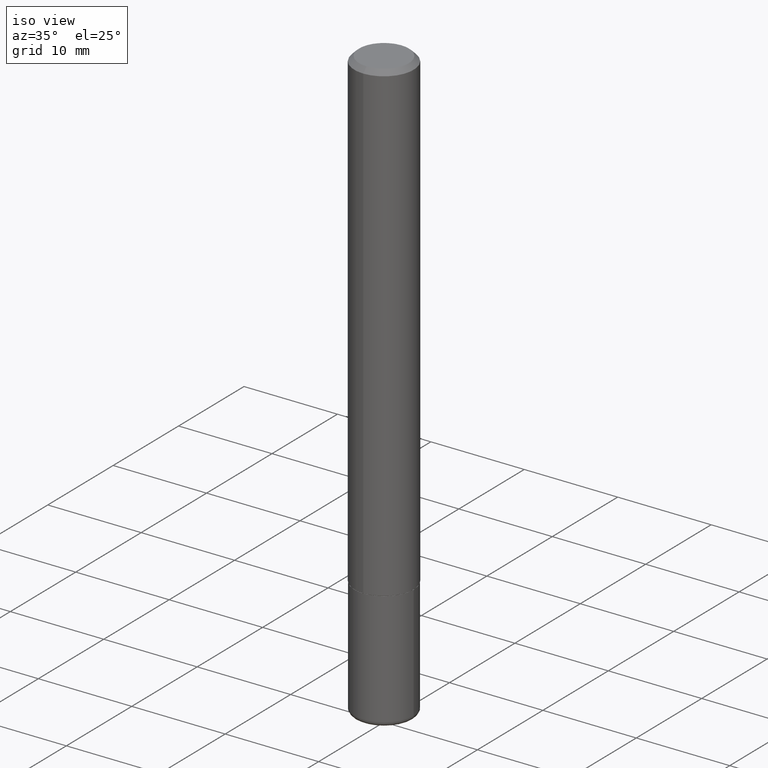
[diagram: clean part render]
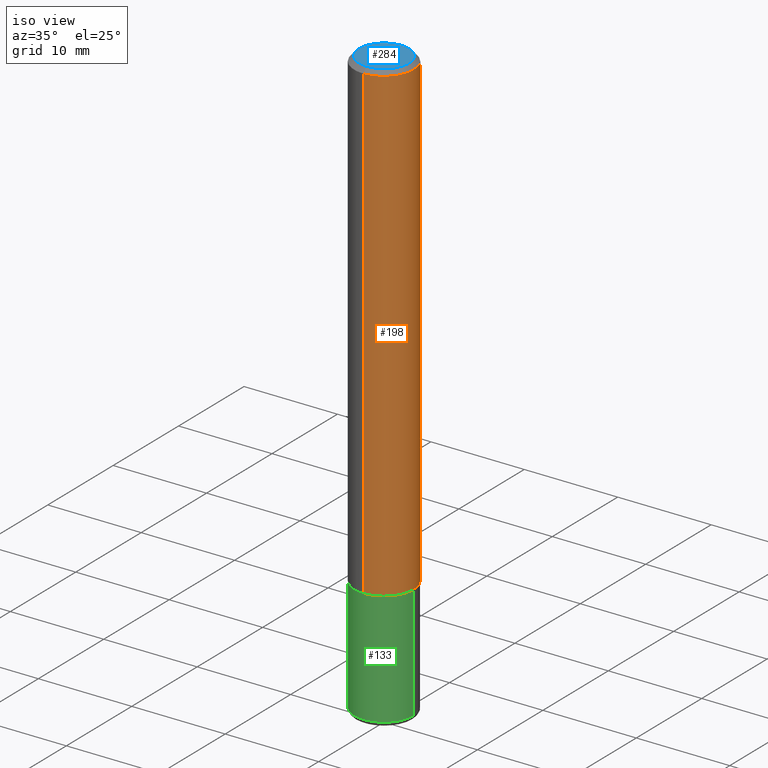
[diagram: same view with three faces highlighted in distinct colors, each labeled with its STEP entity id]
A machine part, iso view with three faces highlighted in distinct colors.
Their STEP definitions:

[orange] entity #198 — the highlighted cylindrical surface (edge-blend (fillet) strip) has radius 3.175 mm, axis along (-0, 0, 1).
#12 = CARTESIAN_POINT ( 'NONE',  ( -8.575622497214411495E-16, -0.1250000000000001110, -0.01999999999999963612 ) ) ;
#42 = VERTEX_POINT ( 'NONE', #385 ) ;
#45 = ORIENTED_EDGE ( 'NONE', *, *, #357, .T. ) ;
#51 = EDGE_CURVE ( 'NONE', #42, #316, #218, .T. ) ;
#52 = AXIS2_PLACEMENT_3D ( 'NONE', #231, #106, #110 ) ;
#58 = CARTESIAN_POINT ( 'NONE',  ( 8.881784197001510675E-16, 0.1249999999999932554, -1.999000000000000554 ) ) ;
#61 = VERTEX_POINT ( 'NONE', #95 ) ;
#67 = DIRECTION ( 'NONE',  ( -2.433760210306857467E-29, 3.508248714552732429E-15, 1.000000000000000000 ) ) ;
#95 = CARTESIAN_POINT ( 'NONE',  ( 8.728703347107839305E-16, 0.1249999999999999584, -0.02000000000000051736 ) ) ;
#106 = DIRECTION ( 'NONE',  ( -2.433760210306857467E-29, 3.508248714552732824E-15, 1.000000000000000000 ) ) ;
#110 = DIRECTION ( 'NONE',  ( -6.982962677686266711E-15, -1.000000000000000000, 3.508248714552733218E-15 ) ) ;
#122 = DIRECTION ( 'NONE',  ( -6.982962677686265922E-15, -1.000000000000000000, 3.517254291842738179E-15 ) ) ;
#147 = CYLINDRICAL_SURFACE ( 'NONE', #52, 0.1250000000000001388 ) ;
#161 = ORIENTED_EDGE ( 'NONE', *, *, #403, .F. ) ;
#183 = CARTESIAN_POINT ( 'NONE',  ( -8.728703347107843249E-16, -0.1250000000000001388, 4.385310893190921453E-16 ) ) ;
#185 = ORIENTED_EDGE ( 'NONE', *, *, #230, .T. ) ;
#198 = ADVANCED_FACE ( 'NONE', ( #302 ), #147, .T. ) ;
#213 = AXIS2_PLACEMENT_3D ( 'NONE', #280, #282, #122 ) ;
#218 = LINE ( 'NONE', #183, #406 ) ;
#230 = EDGE_CURVE ( 'NONE', #42, #370, #293, .T. ) ;
#231 = CARTESIAN_POINT ( 'NONE',  ( 0.000000000000000000, 0.000000000000000000, 0.000000000000000000 ) ) ;
#237 = EDGE_LOOP ( 'NONE', ( #185, #45, #161, #266 ) ) ;
#238 = CARTESIAN_POINT ( 'NONE',  ( 4.865086660403408100E-29, -7.012989180390911878E-15, -1.998999999999999888 ) ) ;
#252 = LINE ( 'NONE', #342, #354 ) ;
#266 = ORIENTED_EDGE ( 'NONE', *, *, #51, .F. ) ;
#280 = CARTESIAN_POINT ( 'NONE',  ( 4.867520420613734727E-31, -7.016497429105492666E-17, -0.02000000000000007674 ) ) ;
#282 = DIRECTION ( 'NONE',  ( -2.433760210306857467E-29, 3.508248714552732824E-15, 1.000000000000000000 ) ) ;
#293 = CIRCLE ( 'NONE', #367, 0.1250000000000002776 ) ;
#302 = FACE_OUTER_BOUND ( 'NONE', #237, .T. ) ;
#316 = VERTEX_POINT ( 'NONE', #12 ) ;
#342 = CARTESIAN_POINT ( 'NONE',  ( 8.881784197001262184E-16, 0.1250000000000001388, -4.385310893190921453E-16 ) ) ;
#354 = VECTOR ( 'NONE', #67, 39.37007874015748143 ) ;
#357 = EDGE_CURVE ( 'NONE', #370, #61, #252, .T. ) ;
#359 = CIRCLE ( 'NONE', #213, 0.1250000000000000278 ) ;
#363 = DIRECTION ( 'NONE',  ( -2.433760210306857467E-29, 3.508248714552732824E-15, 1.000000000000000000 ) ) ;
#367 = AXIS2_PLACEMENT_3D ( 'NONE', #238, #363, #405 ) ;
#370 = VERTEX_POINT ( 'NONE', #58 ) ;
#385 = CARTESIAN_POINT ( 'NONE',  ( -8.728703347107365002E-16, -0.1250000000000072997, -1.998999999999999444 ) ) ;
#403 = EDGE_CURVE ( 'NONE', #316, #61, #359, .T. ) ;
#405 = DIRECTION ( 'NONE',  ( -6.982962677686265922E-15, -1.000000000000000000, 4.370956789862811683E-15 ) ) ;
#406 = VECTOR ( 'NONE', #410, 39.37007874015748143 ) ;
#410 = DIRECTION ( 'NONE',  ( -2.433760210306857467E-29, 3.508248714552732429E-15, 1.000000000000000000 ) ) ;

[blue] entity #284 — the highlighted planar face has unit normal (0, -0, -1).
#22 = EDGE_LOOP ( 'NONE', ( #105, #93 ) ) ;
#24 = VERTEX_POINT ( 'NONE', #27 ) ;
#27 = CARTESIAN_POINT ( 'NONE',  ( 8.030407079339199420E-16, 0.1049999999999997047, -8.915222872200252248E-17 ) ) ;
#54 = FACE_OUTER_BOUND ( 'NONE', #22, .T. ) ;
#63 = EDGE_CURVE ( 'NONE', #64, #24, #262, .T. ) ;
#64 = VERTEX_POINT ( 'NONE', #382 ) ;
#78 = PLANE ( 'NONE',  #319 ) ;
#93 = ORIENTED_EDGE ( 'NONE', *, *, #63, .T. ) ;
#105 = ORIENTED_EDGE ( 'NONE', *, *, #338, .T. ) ;
#118 = DIRECTION ( 'NONE',  ( -2.433760210306857467E-29, 3.508248714552732824E-15, 1.000000000000000000 ) ) ;
#128 = DIRECTION ( 'NONE',  ( -2.433760210306857467E-29, 3.508248714552732824E-15, 1.000000000000000000 ) ) ;
#142 = AXIS2_PLACEMENT_3D ( 'NONE', #245, #128, #250 ) ;
#176 = CARTESIAN_POINT ( 'NONE',  ( -6.795396466567667121E-45, 9.795517577184144836E-31, 2.792138863060333773E-16 ) ) ;
#206 = CARTESIAN_POINT ( 'NONE',  ( 7.332110811570558550E-16, 0.1049999999999997047, -2.287591718750192234E-16 ) ) ;
#245 = CARTESIAN_POINT ( 'NONE',  ( -6.795396466567667121E-45, 9.795517577184144836E-31, 2.792138863060333773E-16 ) ) ;
#250 = DIRECTION ( 'NONE',  ( -6.982962677686265922E-15, -1.000000000000000000, 3.508248714552732035E-15 ) ) ;
#262 = CIRCLE ( 'NONE', #142, 0.1049999999999997047 ) ;
#272 = AXIS2_PLACEMENT_3D ( 'NONE', #176, #118, #408 ) ;
#284 = ADVANCED_FACE ( 'NONE', ( #54 ), #78, .F. ) ;
#308 = DIRECTION ( 'NONE',  ( 2.433760210306857467E-29, -3.508248714552732429E-15, -1.000000000000000000 ) ) ;
#319 = AXIS2_PLACEMENT_3D ( 'NONE', #206, #308, #335 ) ;
#335 = DIRECTION ( 'NONE',  ( 6.982962677686265922E-15, 1.000000000000000000, -3.508248714552732429E-15 ) ) ;
#338 = EDGE_CURVE ( 'NONE', #24, #64, #380, .T. ) ;
#380 = CIRCLE ( 'NONE', #272, 0.1049999999999997047 ) ;
#382 = CARTESIAN_POINT ( 'NONE',  ( -7.889572697437248320E-16, -0.1049999999999997047, 6.475800013340691661E-16 ) ) ;
#408 = DIRECTION ( 'NONE',  ( -6.982962677686265922E-15, -1.000000000000000000, 3.508248714552732035E-15 ) ) ;

[green] entity #133 — the highlighted cylindrical surface (edge-blend (fillet) strip) has radius 3.175 mm, axis along (-0, 0, 1).
#7 = LINE ( 'NONE', #265, #300 ) ;
#11 = ORIENTED_EDGE ( 'NONE', *, *, #261, .T. ) ;
#18 = CARTESIAN_POINT ( 'NONE',  ( 0.1250000000000000278, -7.855833012397075293E-15, -2.000000000000000000 ) ) ;
#29 = CARTESIAN_POINT ( 'NONE',  ( -0.1249999999999999861, -7.770695300630876412E-15, -2.480000000000000426 ) ) ;
#36 = EDGE_CURVE ( 'NONE', #215, #254, #365, .T. ) ;
#70 = VECTOR ( 'NONE', #138, 39.37007874015748143 ) ;
#80 = DIRECTION ( 'NONE',  ( 1.000000000000000000, -6.982962677686261189E-15, 0.000000000000000000 ) ) ;
#114 = CARTESIAN_POINT ( 'NONE',  ( 6.064762639339139522E-29, -8.658873720331001644E-15, -2.480000000000000426 ) ) ;
#131 = DIRECTION ( 'NONE',  ( 1.000000000000000000, -6.982962677686269077E-15, 0.000000000000000000 ) ) ;
#133 = ADVANCED_FACE ( 'NONE', ( #195 ), #229, .T. ) ;
#138 = DIRECTION ( 'NONE',  ( -2.445468806185136877E-29, 3.491481338843145188E-15, 1.000000000000000000 ) ) ;
#154 = CARTESIAN_POINT ( 'NONE',  ( 4.890937612370273194E-29, -6.982962677686291165E-15, -2.000000000000000000 ) ) ;
#156 = AXIS2_PLACEMENT_3D ( 'NONE', #154, #286, #131 ) ;
#164 = AXIS2_PLACEMENT_3D ( 'NONE', #114, #207, #80 ) ;
#179 = CARTESIAN_POINT ( 'NONE',  ( -0.1250000000000000278, -6.932739779308521567E-15, -2.000000000000000000 ) ) ;
#188 = EDGE_CURVE ( 'NONE', #204, #254, #7, .T. ) ;
#195 = FACE_OUTER_BOUND ( 'NONE', #327, .T. ) ;
#197 = DIRECTION ( 'NONE',  ( -2.445468806185136597E-29, 3.491481338843145583E-15, 1.000000000000000000 ) ) ;
#204 = VERTEX_POINT ( 'NONE', #307 ) ;
#207 = DIRECTION ( 'NONE',  ( -2.445468806185136597E-29, 3.491481338843145583E-15, 1.000000000000000000 ) ) ;
#209 = EDGE_CURVE ( 'NONE', #341, #215, #239, .T. ) ;
#215 = VERTEX_POINT ( 'NONE', #179 ) ;
#229 = CYLINDRICAL_SURFACE ( 'NONE', #401, 0.1250000000000000278 ) ;
#239 = LINE ( 'NONE', #369, #70 ) ;
#254 = VERTEX_POINT ( 'NONE', #18 ) ;
#261 = EDGE_CURVE ( 'NONE', #341, #204, #393, .T. ) ;
#265 = CARTESIAN_POINT ( 'NONE',  ( 0.1250000000000000278, -8.728703347107836346E-16, 6.095220969744921142E-30 ) ) ;
#286 = DIRECTION ( 'NONE',  ( -2.445468806185136597E-29, 3.491481338843145583E-15, 1.000000000000000000 ) ) ;
#298 = CARTESIAN_POINT ( 'NONE',  ( 0.000000000000000000, 0.000000000000000000, 0.000000000000000000 ) ) ;
#300 = VECTOR ( 'NONE', #322, 39.37007874015748143 ) ;
#307 = CARTESIAN_POINT ( 'NONE',  ( 0.1249999999999999861, -9.531744055041784983E-15, -2.480000000000000426 ) ) ;
#322 = DIRECTION ( 'NONE',  ( -2.445468806185136877E-29, 3.491481338843145188E-15, 1.000000000000000000 ) ) ;
#326 = DIRECTION ( 'NONE',  ( 1.000000000000000000, -6.982962677686267499E-15, 4.876176775795935793E-29 ) ) ;
#327 = EDGE_LOOP ( 'NONE', ( #412, #11, #362, #400 ) ) ;
#341 = VERTEX_POINT ( 'NONE', #29 ) ;
#362 = ORIENTED_EDGE ( 'NONE', *, *, #188, .T. ) ;
#365 = CIRCLE ( 'NONE', #156, 0.1250000000000000278 ) ;
#369 = CARTESIAN_POINT ( 'NONE',  ( -0.1250000000000000278, 8.881784197001254296E-16, -6.148668862818634329E-30 ) ) ;
#393 = CIRCLE ( 'NONE', #164, 0.1250000000000000278 ) ;
#400 = ORIENTED_EDGE ( 'NONE', *, *, #36, .F. ) ;
#401 = AXIS2_PLACEMENT_3D ( 'NONE', #298, #197, #326 ) ;
#412 = ORIENTED_EDGE ( 'NONE', *, *, #209, .F. ) ;